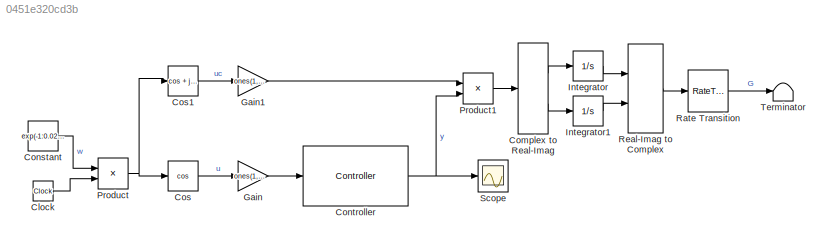
MODEL slx_0451e320cd3b
KIND model
CONFIG AbsTol = auto
CONFIG EnableMultiTasking = off
CONFIG FixedStep = 1e-3
CONFIG MaxStep = 1e-3
CONFIG MinStep = auto
CONFIG RelTol = 1e-3
CONFIG SampleTimeConstraint = Unconstrained
CONFIG SolverName = ode4
CONFIG StartTime = 0.0
CONFIG StopTime = 20
BLOCK [Clock] Clock
BLOCK [ComplexToRealImag] Complex to Real-Imag
  Ports = [1, 2]
BLOCK [Constant] Constant
  Value = exp(-1:0.02:7)'
  VectorParams1D = off
BLOCK [Reference] Controller  REF=resonance_lib/Controller  (lib defined in slx_0762205c3b4b)
  Ports = [1, 1]
  SourceBlock = resonance_lib/Controller
BLOCK [Trigonometry] Cos
  Operator = cos
  Ports = [1, 1]
BLOCK [Trigonometry] Cos1
  Operator = cos + jsin
  Ports = [1, 1]
BLOCK [Gain] Gain
  Gain = ones(1,5)
  Multiplication = Matrix(u*K)
BLOCK [Gain] Gain1
  Gain = ones(1,5)
  Multiplication = Matrix(u*K)
BLOCK [Integrator] Integrator
  Ports = [1, 1]
BLOCK [Integrator] Integrator1
  Ports = [1, 1]
BLOCK [Product] Product
  Ports = [2, 1]
BLOCK [Product] Product1
  Ports = [2, 1]
BLOCK [RateTransition] Rate Transition
  Integrity = off
  OutPortSampleTime = 1
BLOCK [RealImagToComplex] Real-Imag to Complex
  Ports = [2, 1]
BLOCK [Scope] Scope
  Floating = off
  NumInputPorts = 1
  Ports = [1]
  ScopeSpecificationString = Simulink.scopes.TimeScopeBlockCfg('CurrentConfiguration', extmgr.ConfigurationSet(extmgr.Configuration('Core','General UI',true),extmgr.Configuration('Core','Source UI',true),extmgr.Configuration('Sources','WiredSimulink',true),extmgr.Configuration('Visuals','Time Domain',true,'SerializedDisplays',{struct('MinYLimReal','-12.02073','MaxYLimReal','11.69545','YLabelReal','','MinYLimMag','0.00000','Ma...<+1438ch>
BLOCK [Terminator] Terminator
LINE Clock:1 -> Product:2
LINE Complex to Real-Imag:1 -> Integrator:1
LINE Complex to Real-Imag:2 -> Integrator1:1
LINE Constant:1 -> Product:1
NET Controller:1 -> Product1:2, Scope:1
LINE Cos1:1 -> Gain1:1
LINE Cos:1 -> Gain:1
LINE Gain1:1 -> Product1:1
LINE Gain:1 -> Controller:1
LINE Integrator1:1 -> Real-Imag to Complex:2
LINE Integrator:1 -> Real-Imag to Complex:1
LINE Product1:1 -> Complex to Real-Imag:1
NET Product:1 -> Cos1:1, Cos:1
LINE Rate Transition:1 -> Terminator:1
LINE Real-Imag to Complex:1 -> Rate Transition:1
note: NET lines group one-source signal fan-out (src -> all destinations, sorted); 1:1 wires keep LINE
